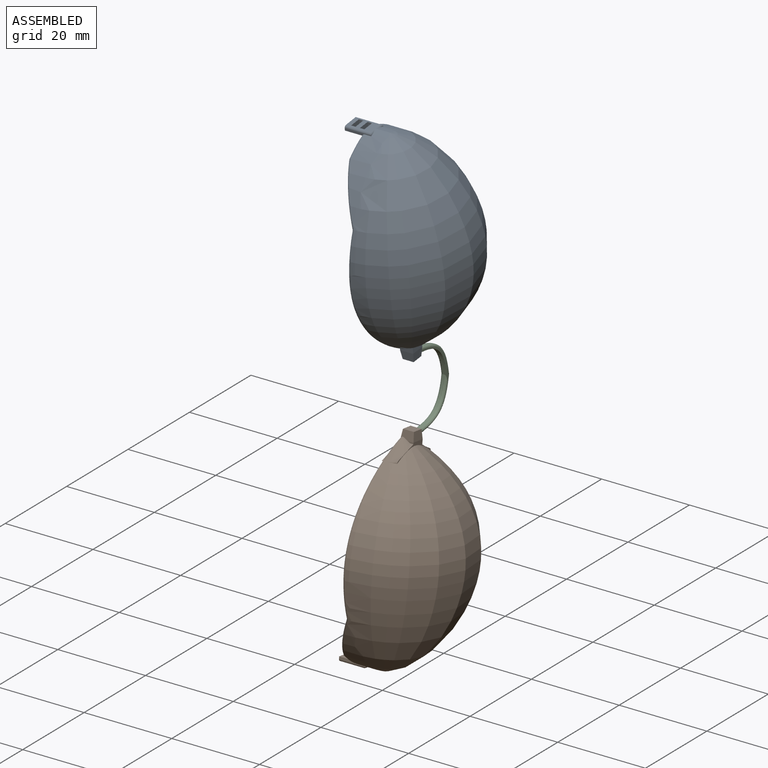
[diagram: assembled view]
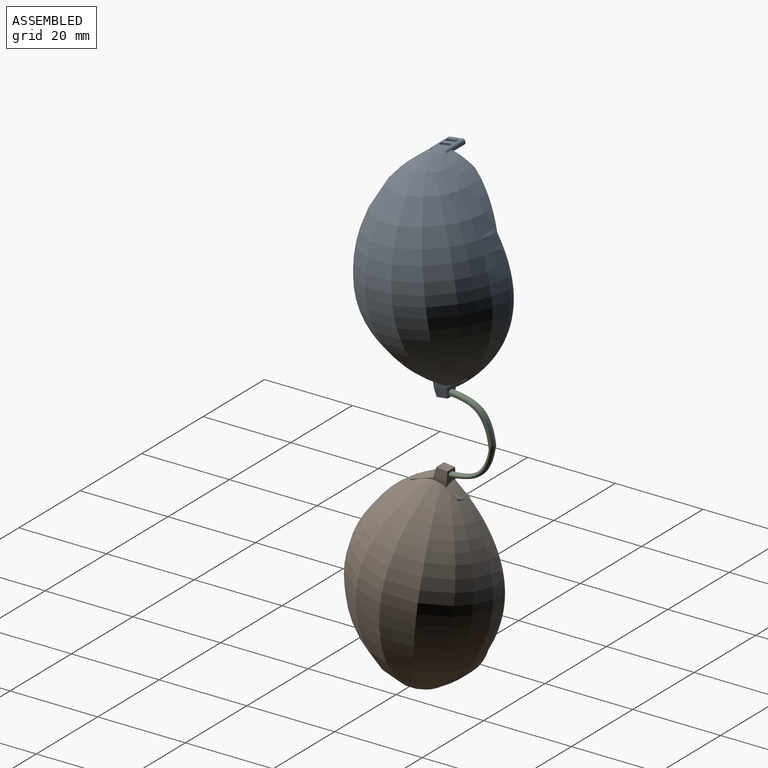
[diagram: assembled view, second angle]
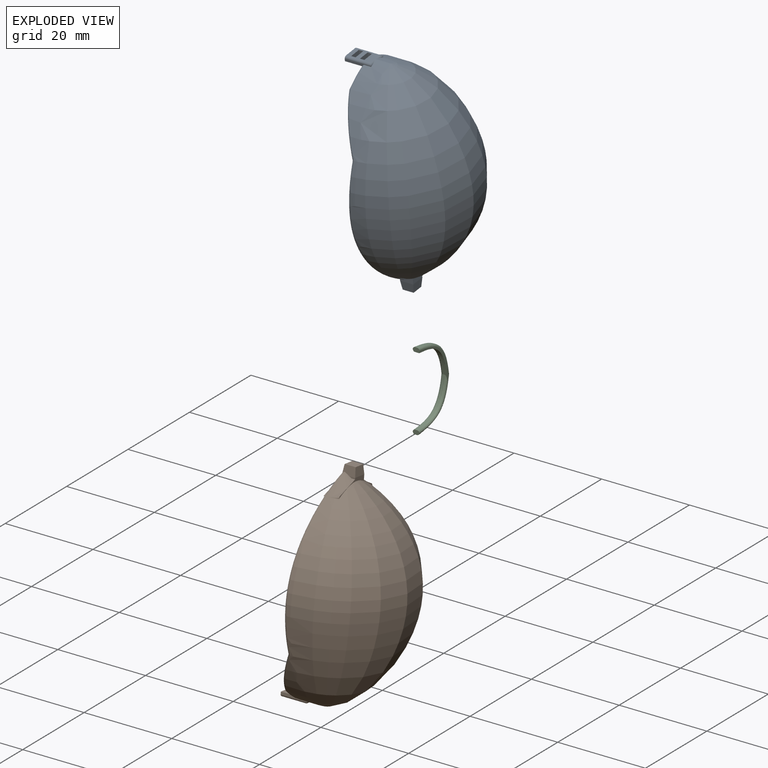
[diagram: exploded view]
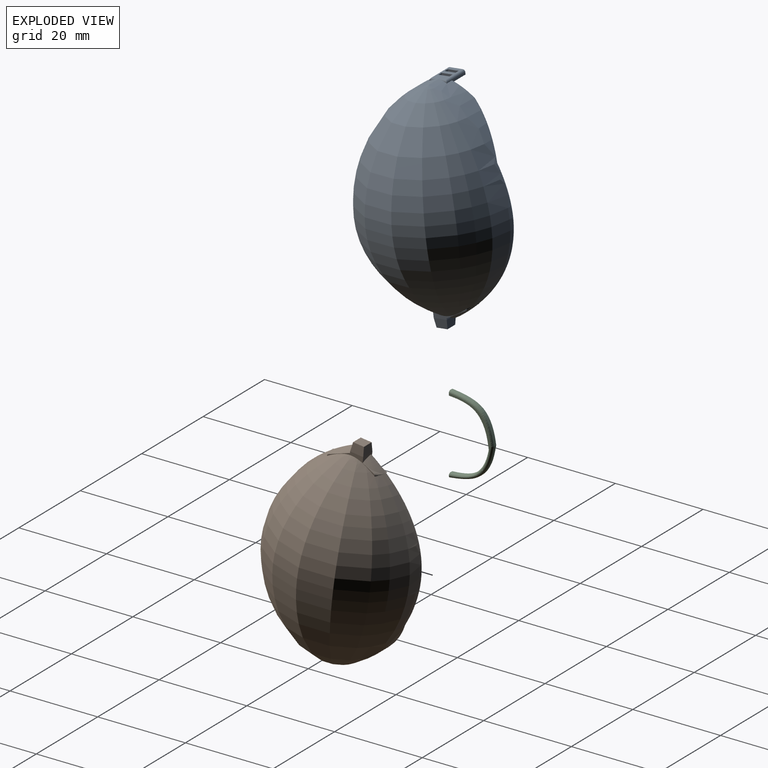
[diagram: exploded view, second angle]
ASSEMBLY  parts=3 mates=2
PART A: 82 faces, bbox 48.7x33.9x26.2 mm
  f0: plane 4.01x4mm, normal (-1,0,0), area 11mm2, adj f6,f7,f8,f67,f68,f69,f71,f72
  f1: plane 2x0.08mm, normal (-1,0,0), area 0.2mm2, adj f3,f5,f6,f66,f70
  f2: plane 5.52x3.02mm, normal (1,0,0), area 11.4mm2, adj f4,f6,f27,f30,f31,f69,f71,f72
  f3: extruded ~12.37x11.96mm, area 60.1mm2, adj f1,f5,f6,f26,f41,f70
  f4: extruded ~13.79x12.55mm, area 59.3mm2, adj f2,f8,f17,f27,f31,f34,f64,f67
  f5: extruded ~12.37x11.96mm, area 60.1mm2, adj f1,f3,f6,f26,f33,f66
  f6: plane 13.22x4.02mm, normal (0,0,-1), area 8.5mm2, adj f0,f1,f2,f3,f5,f7,f8,f28
  f7: bspline ~7.3x4.37mm, area 4.3mm2, adj f0,f6,f27,f32,f68
  f8: bspline ~7.3x4.37mm, area 4.3mm2, adj f0,f4,f6,f34,f67
  f9: plane 0.83x0.29mm, normal (0.91,0.42,0), area 0mm2, adj f15,f19,f63
  f10: plane 5.44x2.5mm, normal (-0.91,-0.42,0), area 2.1mm2, adj f14,f15,f56,f63
  f11: plane 0.83x0.29mm, normal (0.91,-0.42,0), area 0mm2, adj f16,f18,f62
  f12: plane 2.6x1.21mm, normal (-0.91,0.42,0), area 0.3mm2, adj f18,f24,f62
  f13: plane 0.01x0mm, normal (-0.12,-0.99,0), area 0mm2, adj f22,f46,f59
  f14: plane 1.35x0.34mm, normal (0,-1,0), area 0.3mm2, adj f10,f15,f56,f60
  f15: revolved ~6.01x5.99mm, area 12.7mm2, adj f9,f10,f14,f19,f60
  f16: revolved ~4.52x4.47mm, area 6.8mm2, adj f11,f18,f49,f53
  f17: revolved ~45.35x33.28mm, area 1973.6mm2, adj f4,f20,f27,f35,f37,f38,f56,f62
  f18: bspline ~5.76x4.18mm, area 2.8mm2, adj f11,f12,f16,f24,f49
  f19: bspline ~7.28x5.15mm, area 4.8mm2, adj f9,f15,f22,f24,f51,f59,f60
  f20: bspline ~33.03x12.75mm, area 26.8mm2, adj f17,f24,f35,f52
  f21: bspline ~21.26x12.07mm, area 18mm2, adj f24,f25,f43,f61
  f22: bspline ~3.31x2.42mm, area 0.5mm2, adj f13,f19,f24,f46,f47,f59
  f23: bspline ~1.05x0.94mm, area 0mm2, adj f24,f44,f48
  f24: plane 32.3x32.24mm, normal (0,0,-1), area 41.8mm2, adj f12,f18,f19,f20,f21,f22,f23,f28
  f25: revolved ~30.08x20.09mm, area 813.4mm2, adj f21,f26,f40,f50,f55,f61
  f26: revolved ~30x22.86mm, area 886.7mm2, adj f3,f5,f25,f36,f39,f42,f43
  f27: extruded ~13.79x12.55mm, area 59.3mm2, adj f2,f4,f7,f17,f30,f32,f65,f68
  f28: plane 10.02x7.45mm, normal (-0.45,0,-0.89), area 3.2mm2, adj f6,f24,f34,f37,f41,f42,f43
  f29: plane 10.02x7.45mm, normal (-0.45,0,-0.89), area 3.2mm2, adj f6,f24,f32,f33,f35,f36,f39
  f30: bspline ~0.79x0.63mm, area 0mm2, adj f2,f27,f31
  f31: bspline ~0.79x0.63mm, area 0mm2, adj f2,f4,f30
  f32: bspline ~12.02x9.14mm, area 11.5mm2, adj f6,f7,f27,f29,f35
  f33: bspline ~12.39x10.06mm, area 8.4mm2, adj f5,f6,f29,f36
  f34: bspline ~12x9.14mm, area 11.5mm2, adj f4,f6,f8,f28,f37
  f35: bspline ~4.67x2.71mm, area 1mm2, adj f17,f20,f24,f29,f32
  f36: bspline ~4.3x2.51mm, area 0.8mm2, adj f26,f29,f33,f39
  f37: bspline ~4.67x2.71mm, area 1mm2, adj f17,f24,f28,f34,f38
  f38: bspline ~33.56x12.36mm, area 26.8mm2, adj f17,f24,f37,f54
  f39: bspline ~17.74x4.01mm, area 7.8mm2, adj f24,f26,f29,f36,f40
  f40: bspline ~27.58x13.11mm, area 18mm2, adj f24,f25,f39,f61
  f41: bspline ~12.41x10.04mm, area 8.4mm2, adj f3,f6,f28,f42
  f42: bspline ~4.3x2.51mm, area 0.8mm2, adj f26,f28,f41,f43
  f43: bspline ~17.74x4.01mm, area 7.8mm2, adj f21,f24,f26,f28,f42
  f44: plane 0.03x0mm, normal (0,1,0), area 0mm2, adj f23,f24,f48
  f45: plane 2.5x2.5mm, normal (-1,0,0), area 6.3mm2, adj f57,f58,f59,f60
  f46: plane 0.32x0.12mm, normal (0,-1,0), area 0mm2, adj f13,f22,f24,f47
  f47: plane 2.11x0.97mm, normal (-0.91,-0.42,0), area 0.1mm2, adj f22,f24,f46
  f48: plane 0.13x0.06mm, normal (-0.91,0.42,0), area 0mm2, adj f23,f24,f44
  f49: plane 3.55x1.78mm, normal (0,1,0), area 2.3mm2, adj f16,f18,f24,f53,f56,f57
  f50: plane 8.19x2.5mm, normal (1,0,0), area 18.2mm2, adj f25,f55,f61
  f51: plane 2.61x1.22mm, normal (-0.91,-0.42,0), area 0.3mm2, adj f19,f24,f63
  f52: plane 1.1x0.77mm, normal (1,0,0), area 0.1mm2, adj f20,f24,f63
  f53: plane 3.88x2.21mm, normal (-0.91,0.42,0), area 1.3mm2, adj f16,f49,f56,f62
  f54: plane 1.11x0.78mm, normal (1,0,0), area 0.1mm2, adj f24,f38,f62
  f55: plane 5.66x0.82mm, normal (0,0,1), area 3mm2, adj f25,f50
  f56: plane 11.05x3.03mm, normal (0,0,1), area 3.9mm2, adj f10,f14,f17,f49,f53,f58,f62,f63
  f57: plane 3x2mm, normal (-0.12,0.99,0), area 5.5mm2, adj f45,f49,f58,f59
  f58: plane 3x2mm, normal (-0.12,0,0.99), area 5.5mm2, adj f45,f56,f57,f60
  f59: plane 3.17x2.1mm, normal (-0.12,0,-0.99), area 5.5mm2, adj f13,f19,f22,f24,f45,f57,f60
  f60: plane 3.12x2.13mm, normal (-0.12,-0.99,0), area 5mm2, adj f14,f15,f19,f45,f58,f59
  f61: cylinder r=0.5mm len=8.52mm, axis (0,-1,0), area 6.5mm2, adj f21,f24,f25,f40,f50
  f62: bspline ~3.26x1.13mm, area 1mm2, adj f11,f12,f17,f53,f54,f56
  f63: bspline ~3.26x1.13mm, area 1mm2, adj f9,f10,f17,f51,f52,f56
  f64: plane 0.15x0.05mm, normal (0,0,1), area 0mm2, adj f4,f67,f79
  f65: plane 0.15x0.05mm, normal (0,0,1), area 0mm2, adj f27,f68,f80
  f66: plane 0.04x0.01mm, normal (0,0,1), area 0mm2, adj f1,f5
  f67: plane 6.07x0.57mm, normal (0,1,0), area 2.2mm2, adj f0,f4,f8,f64,f69,f78
  f68: plane 6.07x0.57mm, normal (0,-1,0), area 2.2mm2, adj f0,f7,f27,f65,f69,f81
  f69: plane 4x1mm, normal (0,0,-1), area 3.9mm2, adj f0,f2,f67,f68,f78,f81
  f70: plane 0.04x0.01mm, normal (0,0,1), area 0mm2, adj f1,f3
  f71: plane 1x1mm, normal (0,1,0), area 1mm2, adj f0,f2,f6,f72
  f72: plane 2.5x1mm, normal (0,0,1), area 2.5mm2, adj f0,f2,f71,f73
  f73: plane 1x1mm, normal (0,-1,0), area 1mm2, adj f0,f2,f6,f72
  f74: plane 2.5x1mm, normal (0,0,-1), area 2.5mm2, adj f0,f2,f75,f77
  f75: plane 1x1mm, normal (0,1,0), area 1mm2, adj f0,f2,f74,f76
  f76: plane 2.5x1mm, normal (0,0,1), area 2.5mm2, adj f0,f2,f75,f77
  f77: plane 1x1mm, normal (0,-1,0), area 1mm2, adj f0,f2,f74,f76
  f78: cylinder r=0.5mm len=6mm, axis (0,0,-1), area 4.5mm2, adj f2,f67,f69,f79
  f79: cylinder r=0.5mm len=1.95mm, axis (0,-1,0), area 0.8mm2, adj f2,f4,f64,f78
  f80: cylinder r=0.5mm len=1.95mm, axis (0,-1,0), area 0.8mm2, adj f2,f27,f65,f81
  f81: cylinder r=0.5mm len=6mm, axis (0,0,1), area 4.5mm2, adj f2,f68,f69,f80
PART B: same geometry as A
PART C: 17 faces, bbox 18.3x11.6x1.5 mm
  f0: plane 10.26x9.5mm, normal (0,0,1), area 6.7mm2, adj f7,f8,f15,f16
  f1: plane 2.59x1.54mm, normal (0,0,-1), area 0mm2, adj f11,f13
  f2: extruded ~9x8mm, area 6.8mm2, adj f3,f7,f10,f14
  f3: plane 1.53x1.03mm, normal (0,-1,0), area 1.3mm2, adj f2,f4,f10,f12,f14,f15
  f4: extruded ~10x9mm, area 7.5mm2, adj f3,f9,f12,f15
  f5: plane 2.59x1.54mm, normal (0,0,1), area 0mm2, adj f14,f15
  f6: plane 2.59x1.54mm, normal (0,0,-1), area 0mm2, adj f10,f12
  f7: extruded ~9.55x9.22mm, area 13.7mm2, adj f0,f2,f8,f11,f14,f15
  f8: plane 1.53x1.03mm, normal (0,-1,0), area 1.3mm2, adj f0,f7,f9,f11,f13,f16
  f9: extruded ~10x9mm, area 7.5mm2, adj f4,f8,f13,f16
  f10: bspline ~10.57x9.06mm, area 10.8mm2, adj f2,f3,f6,f11,f12
  f11: bspline ~10.57x9.06mm, area 10.8mm2, adj f1,f7,f8,f10,f13
  f12: bspline ~10.6x9.83mm, area 11.6mm2, adj f3,f4,f6,f10,f13
  f13: bspline ~10.6x9.83mm, area 11.6mm2, adj f1,f8,f9,f11,f12
  f14: bspline ~9.97x8.86mm, area 10.2mm2, adj f2,f3,f5,f7,f15
  f15: bspline ~11.48x9.61mm, area 11.3mm2, adj f0,f3,f4,f5,f7,f14,f16
  f16: bspline ~11.48x9.61mm, area 11.6mm2, adj f0,f8,f9,f15
PLACE A rot(axis=(-0.71,0.04,-0.71),175deg) t=(-2.32,-8.45,14.45)mm
PLACE B rot(axis=(-0.06,1,-0.06),90.2deg) t=(-2.25,-10.41,-4.37)mm
PLACE C rot(axis=(0,1,0),90deg) t=(-1.5,-7.93,4.88)mm
MATE fastened A.f60 <-> C.f8  axis (0,1,0) through (-0.72,-7.93,13.37)mm
MATE fastened B.f57 <-> C.f3  axis (0,1,0) through (-0.75,-7.93,-3.62)mm
